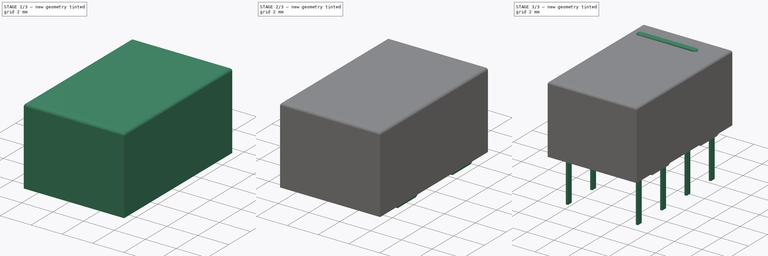
[diagram: build sequence overview — one tinted view per stage of 3, left to right]
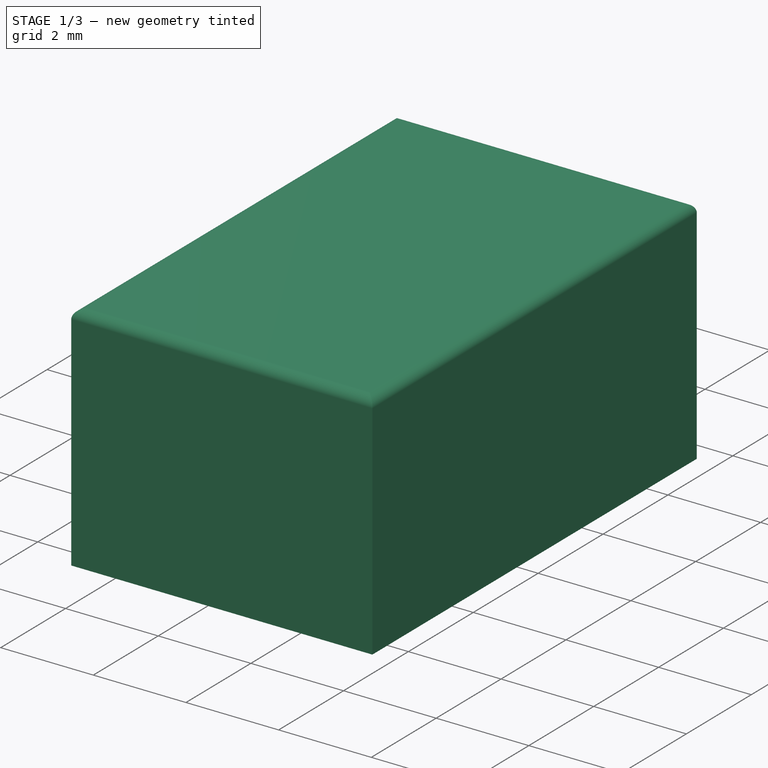
[diagram: stage 1 of 3 — iso view after this stage's code; geometry added in this stage tinted green]
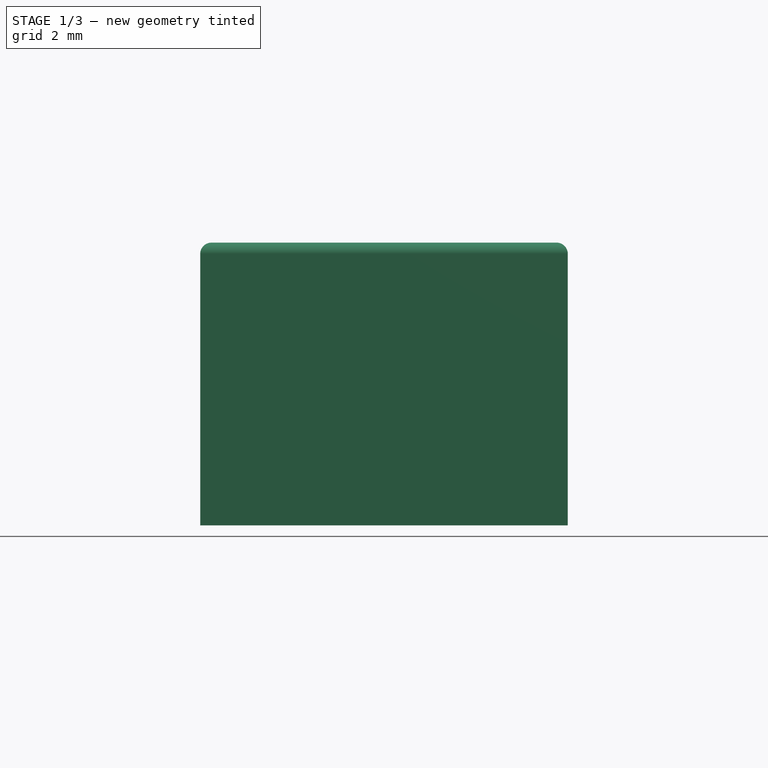
[diagram: stage 1 of 3 — front view after this stage's code; geometry added in this stage tinted green]
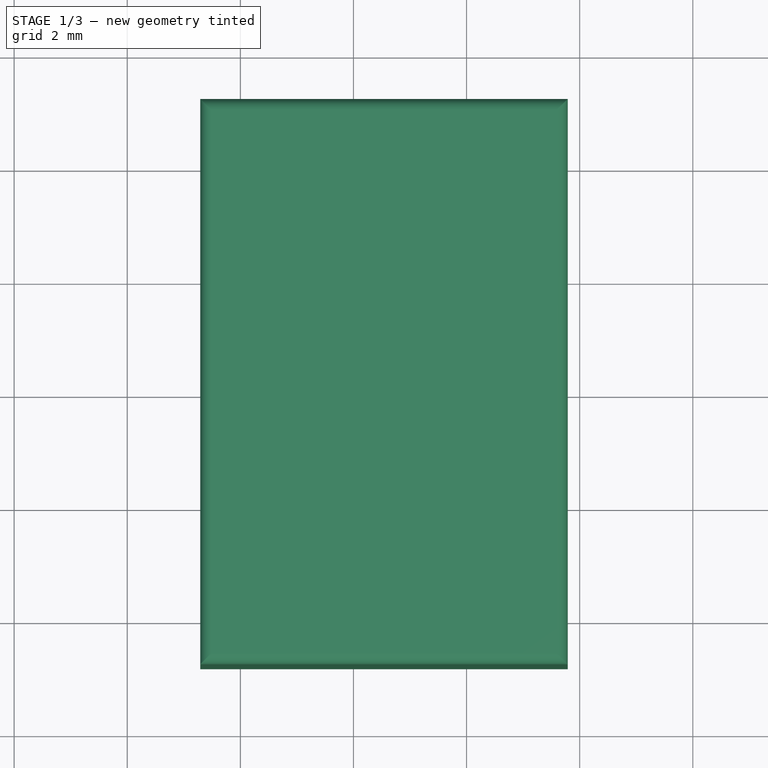
[diagram: stage 1 of 3 — top view after this stage's code; geometry added in this stage tinted green]
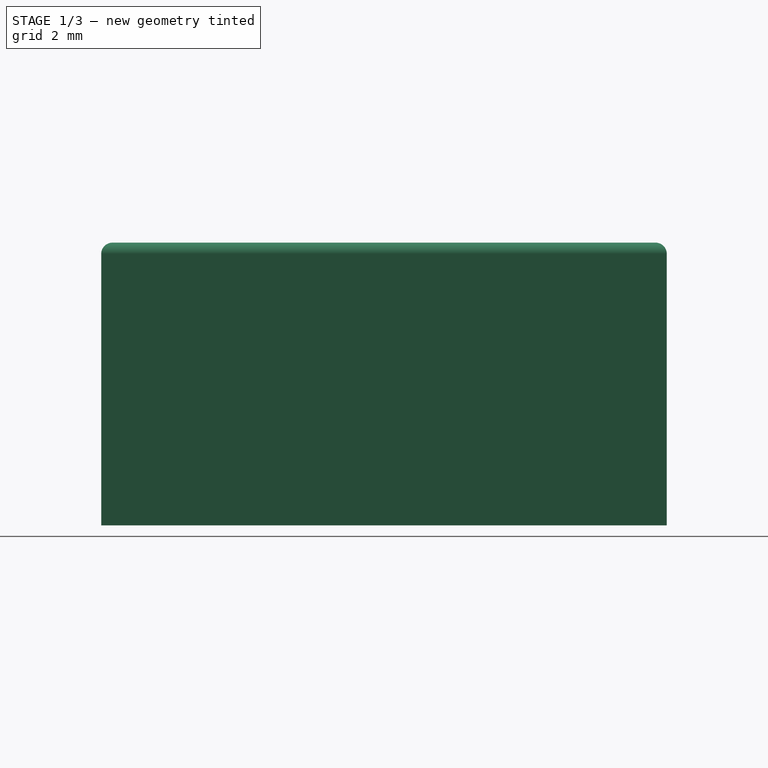
[diagram: stage 1 of 3 — right view after this stage's code; geometry added in this stage tinted green]
FCSTD DOCUMENT  (FreeCAD 0.16R6712 (Git))
Label: Relay_DPDT_Omron_G6K-2P
License: All rights reserved
LicenseURL: http://en.wikipedia.org/wiki/All_rights_reserved
objects: Sketcher::SketchObject×6, PartDesign::Pad×5, PartDesign::Pocket×1, PartDesign::Fillet×1, Part::MultiFuse×1
note: 20 computed .brp shape members not serialized (recipe doc carries the construction recipe); baked Part::Feature solids carry a one-line shape summary decoded from their .brp

FEATURE [Sketcher::SketchObject] Sketch
  Placement = pos=(0,0,0.1) rot=(0,0,-1;1.5708rad)
  sketch-geometry (4):
    g0: LineSegment StartX=-1.19 StartY=-0.71 StartZ=0 EndX=8.81 EndY=-0.71 EndZ=0
    g1: LineSegment StartX=8.81 StartY=-0.71 StartZ=0 EndX=8.81 EndY=5.79 EndZ=0
    g2: LineSegment StartX=8.81 StartY=5.79 StartZ=0 EndX=-1.19 EndY=5.79 EndZ=0
    g3: LineSegment StartX=-1.19 StartY=5.79 StartZ=0 EndX=-1.19 EndY=-0.71 EndZ=0
  constraints (12):
    c: Coincident(g0,g1)
    c: Coincident(g1,g2)
    c: Coincident(g2,g3)
    c: Coincident(g3,g0)
    c: Horizontal(g0)
    c: Horizontal(g2)
    c: Vertical(g1)
    c: Vertical(g3)
    c: DistanceX(g2,g2) = 10
    c: DistanceY(g1,g1) = 6.5
    c: DistanceX(g0,g-1) = 1.19
    c: DistanceY(g0,g-1) = 0.71
FEATURE [PartDesign::Pad] Pad
  Length = 5
  Length2 = 100
  Placement = pos=(0,0,0.1) rot=(0,0,-1;1.5708rad)
  Sketch = -> Sketch
  Type = 0
FEATURE [Sketcher::SketchObject] Sketch003
  Placement = pos=(0,0,5.1) rot=(0,0,-1;1.5708rad)
  Support = -> Pad [Face6]
  sketch-geometry (8):
    g0: ArcOfCircle CenterX=-0.300217 CenterY=8.35 CenterZ=0 NormalX=0 NormalY=0 NormalZ=1 Radius=0.750217 StartAngle=4.68833 EndAngle=6.28319
    g1: LineSegment StartX=0.45 StartY=8.35 StartZ=0 EndX=-2.05 EndY=8.35 EndZ=0
    g2: LineSegment StartX=-2.05 StartY=8.35 StartZ=0 EndX=-2.05 EndY=7.6 EndZ=0
    g3: LineSegment StartX=-2.05 StartY=7.6 StartZ=0 EndX=-0.318267 EndY=7.6 EndZ=0
    g4: LineSegment StartX=9.6 StartY=-0.75 StartZ=0 EndX=12.1 EndY=-0.75 EndZ=0
    g5: LineSegment StartX=12.1 StartY=-0.75 StartZ=0 EndX=12.1 EndY=0 EndZ=0
    g6: ArcOfCircle CenterX=10.353 CenterY=-0.75 CenterZ=0 NormalX=0 NormalY=0 NormalZ=1 Radius=0.753 StartAngle=1.6601 EndAngle=3.14159
    g7: LineSegment StartX=10.2858 StartY=0 StartZ=0 EndX=12.1 EndY=0 EndZ=0
  constraints (24):
    c: Coincident(g1,g0)
    c: Horizontal(g1)
    c: Coincident(g2,g1)
    c: Vertical(g2)
    c: Coincident(g3,g2)
    c: Coincident(g3,g0)
    c: Horizontal(g3)
    c: PointOnObject(g0,g1)
    c: DistanceX(g1,g1) = 2.5
    c: DistanceY(g2,g2) = 0.75
    c: DistanceX(g-1,g0) = 0.45
    c: DistanceY(g-1,g0) = 8.35
    c: Horizontal(g4)
    c: Coincident(g5,g4)
    c: PointOnObject(g6,g4)
    c: Coincident(g6,g4)
    c: Coincident(g6,g7)
    c: Horizontal(g7)
    c: Coincident(g5,g7)
    c: Vertical(g5)
    c: Equal(g5,g2)
    c: Equal(g4,g1)
    c: DistanceX(g-1,g4) = 9.6
    c: DistanceY(g4,g-1) = 0.75
FEATURE [PartDesign::Pocket] Pocket
  Length = 0.5
  Placement = pos=(0,0,0.1) rot=(0,0,-1;1.5708rad)
  Sketch = -> Sketch003
  Type = 0
FEATURE [PartDesign::Fillet] Fillet
  Base = -> Pocket [Edge4,Edge7,Edge10,Edge12]
  Placement = pos=(0,0,0.1) rot=(0,0,-1;1.5708rad)
  Radius = 0.2
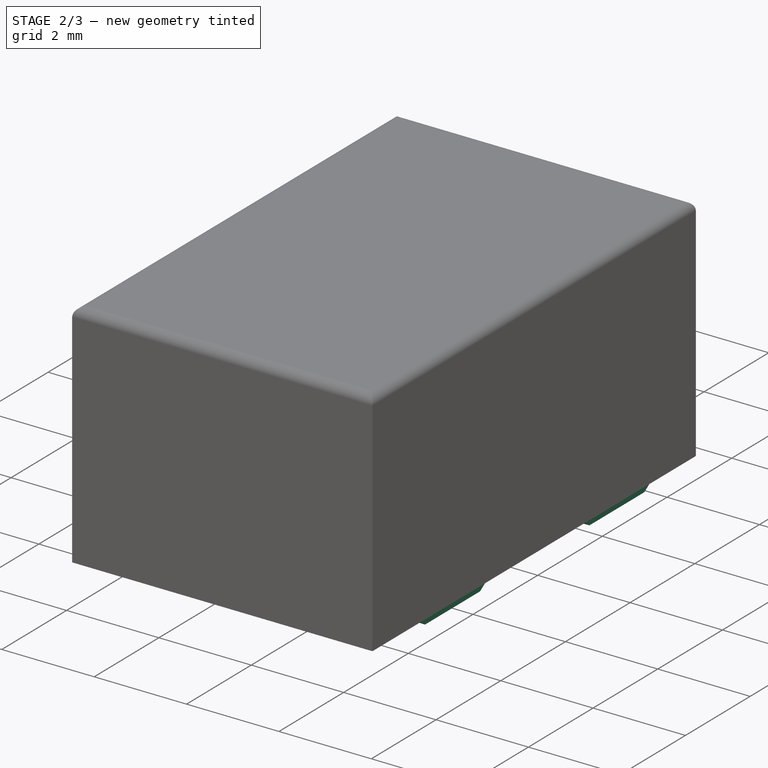
[diagram: stage 2 of 3 — iso view after this stage's code; geometry added in this stage tinted green]
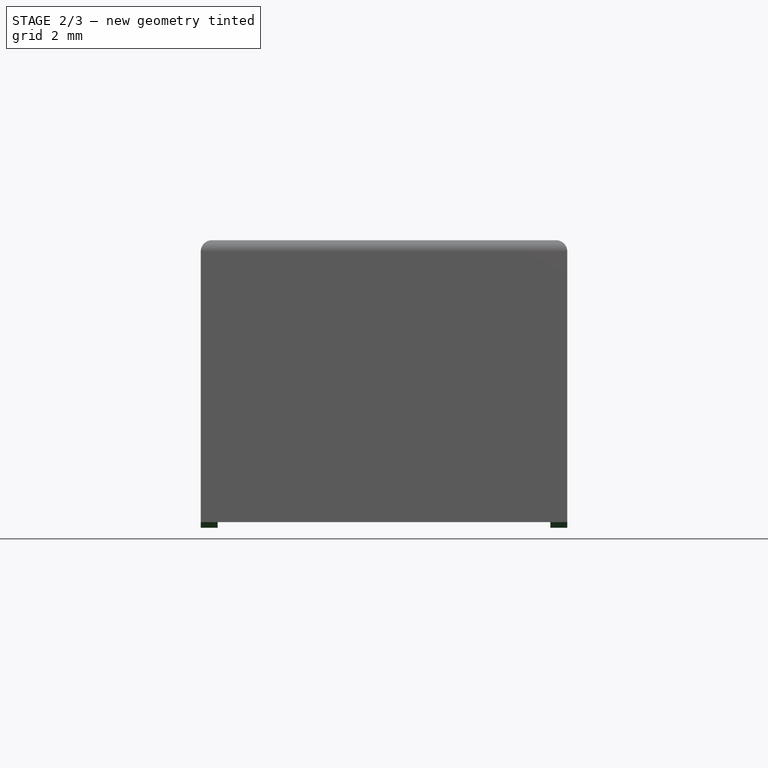
[diagram: stage 2 of 3 — front view after this stage's code; geometry added in this stage tinted green]
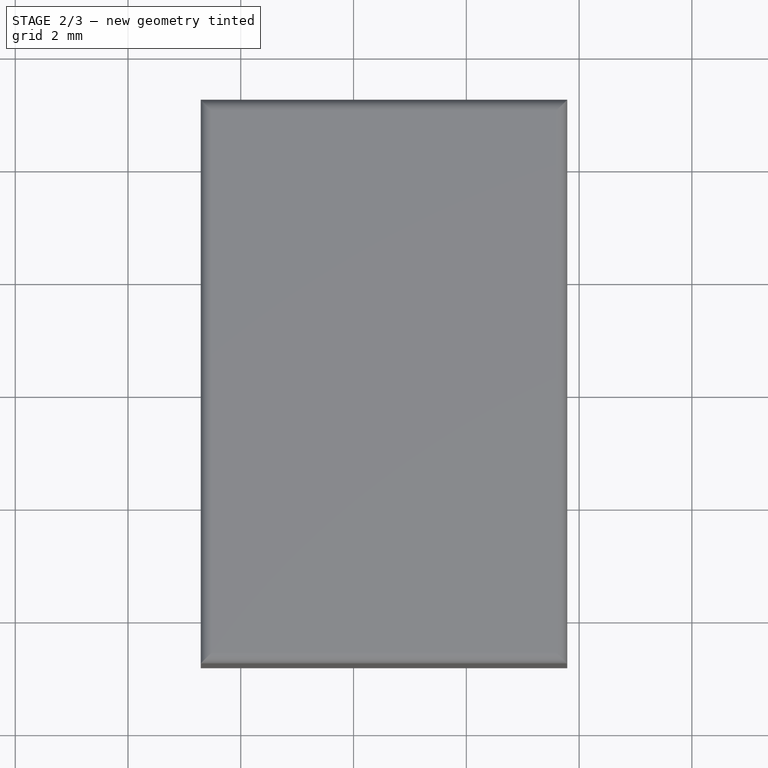
[diagram: stage 2 of 3 — top view after this stage's code; geometry added in this stage tinted green]
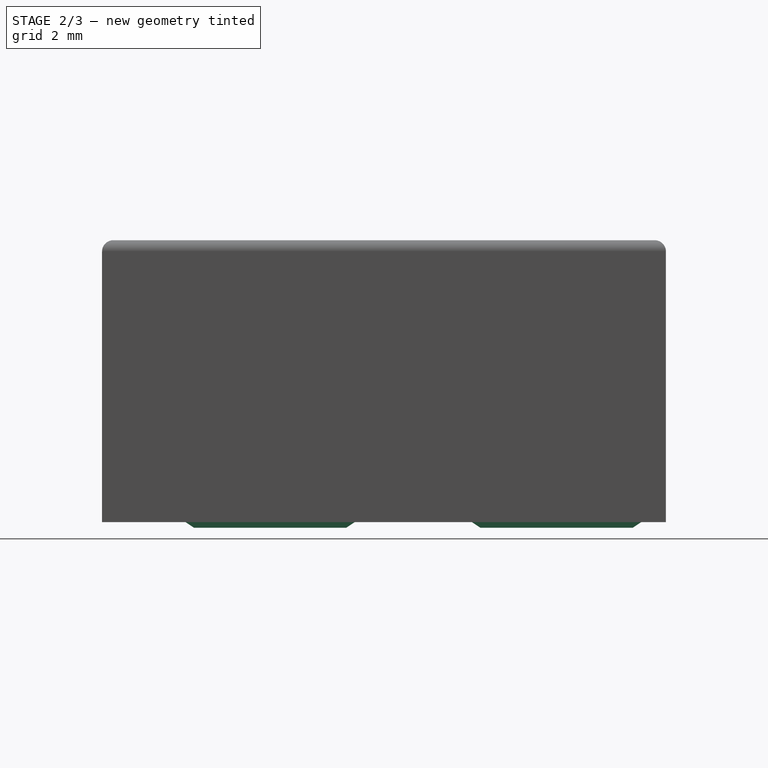
[diagram: stage 2 of 3 — right view after this stage's code; geometry added in this stage tinted green]
FEATURE [Sketcher::SketchObject] Sketch005
  Placement = pos=(-0.71,1,0) rot=(0.57735,0.57735,0.57735;2.0944rad)
  sketch-geometry (11):
    g0: LineSegment StartX=-7.33 StartY=0.1 StartZ=0 EndX=-7.18 EndY=0 EndZ=0
    g1: LineSegment StartX=-7.18 StartY=0 StartZ=0 EndX=-5.48 EndY=0 EndZ=0
    g2: LineSegment StartX=-5.48 StartY=0 StartZ=0 EndX=-5.33 EndY=0.1 EndZ=0
    g3: LineSegment StartX=-5.33 StartY=0.1 StartZ=0 EndX=-7.33 EndY=0.1 EndZ=0
    g4: LineSegment StartX=-2.25 StartY=0.1 StartZ=0 EndX=-2.1 EndY=0 EndZ=0
    g5: LineSegment StartX=-2.1 StartY=0 StartZ=0 EndX=-0.4 EndY=0 EndZ=0
    g6: LineSegment StartX=-0.4 StartY=0 StartZ=0 EndX=-0.25 EndY=0.1 EndZ=0
    g7: LineSegment StartX=-0.25 StartY=0.1 StartZ=0 EndX=-2.25 EndY=0.1 EndZ=0
    g8: LineSegment [constr] StartX=-6.33 StartY=0.1 StartZ=0 EndX=-6.33 EndY=0 EndZ=0
    g9: LineSegment [constr] StartX=-1.25 StartY=0.1 StartZ=0 EndX=-1.25 EndY=0 EndZ=0
    g10: LineSegment [constr] StartX=-5.33 StartY=0.1 StartZ=0 EndX=0 EndY=0.1 EndZ=0
  constraints (34):
    c: Coincident(g1,g0)
    c: Horizontal(g1)
    c: Coincident(g2,g1)
    c: Coincident(g3,g2)
    c: Horizontal(g3)
    c: Coincident(g0,g3)
    c: Coincident(g5,g4)
    c: Horizontal(g5)
    c: Coincident(g6,g5)
    c: Coincident(g7,g6)
    c: Horizontal(g7)
    c: Coincident(g4,g7)
    c: Equal(g5,g1)
    c: Equal(g3,g7)
    c: DistanceX(g3,g3) = 2
    c: DistanceX(g1,g1) = 1.7
    c: PointOnObject(g8,g3)
    c: PointOnObject(g8,g1)
    c: Vertical(g8)
    c: PointOnObject(g9,g5)
    c: Symmetric(g5,g5,g9)
    c: Symmetric(g7,g7,g9)
    c: Vertical(g9)
    c: Symmetric(g3,g3,g8)
    c: Symmetric(g1,g1,g8)
    c: DistanceX(g2,g6) = 5.08
    c: DistanceX(g6,g-1) = 0.25
    c: DistanceY(g4,g4) = 0.1
    c: Equal(g8,g9)
    c: Coincident(g10,g2)
    c: PointOnObject(g10,g-2)
    c: Horizontal(g10)
    c: PointOnObject(g6,g10)
    c: DistanceY(g-1,g6) = 0.1
FEATURE [Sketcher::SketchObject] Sketch006
  Placement = pos=(5.79,0,0) rot=(0.57735,0.57735,0.57735;2.0944rad)
  sketch-geometry (11):
    g0: LineSegment StartX=-7.33 StartY=0.1 StartZ=0 EndX=-7.18 EndY=0 EndZ=0
    g1: LineSegment StartX=-7.18 StartY=0 StartZ=0 EndX=-5.48 EndY=0 EndZ=0
    g2: LineSegment StartX=-5.48 StartY=0 StartZ=0 EndX=-5.33 EndY=0.1 EndZ=0
    g3: LineSegment StartX=-5.33 StartY=0.1 StartZ=0 EndX=-7.33 EndY=0.1 EndZ=0
    g4: LineSegment StartX=-2.25 StartY=0.1 StartZ=0 EndX=-2.1 EndY=0 EndZ=0
    g5: LineSegment StartX=-2.1 StartY=0 StartZ=0 EndX=-0.4 EndY=0 EndZ=0
    g6: LineSegment StartX=-0.4 StartY=0 StartZ=0 EndX=-0.25 EndY=0.1 EndZ=0
    g7: LineSegment StartX=-0.25 StartY=0.1 StartZ=0 EndX=-2.25 EndY=0.1 EndZ=0
    g8: LineSegment [constr] StartX=-6.33 StartY=0.1 StartZ=0 EndX=-6.33 EndY=0 EndZ=0
    g9: LineSegment [constr] StartX=-1.25 StartY=0.1 StartZ=0 EndX=-1.25 EndY=0 EndZ=0
    g10: LineSegment [constr] StartX=-5.33 StartY=0.1 StartZ=0 EndX=0 EndY=0.1 EndZ=0
  constraints (34):
    c: Coincident(g1,g0)
    c: Horizontal(g1)
    c: Coincident(g2,g1)
    c: Coincident(g3,g2)
    c: Horizontal(g3)
    c: Coincident(g0,g3)
    c: Coincident(g5,g4)
    c: Horizontal(g5)
    c: Coincident(g6,g5)
    c: Coincident(g7,g6)
    c: Horizontal(g7)
    c: Coincident(g4,g7)
    c: Equal(g5,g1)
    c: Equal(g3,g7)
    c: DistanceX(g3,g3) = 2
    c: DistanceX(g1,g1) = 1.7
    c: PointOnObject(g8,g3)
    c: PointOnObject(g8,g1)
    c: Vertical(g8)
    c: PointOnObject(g9,g5)
    c: Symmetric(g5,g5,g9)
    c: Symmetric(g7,g7,g9)
    c: Vertical(g9)
    c: Symmetric(g3,g3,g8)
    c: Symmetric(g1,g1,g8)
    c: DistanceX(g2,g6) = 5.08
    c: DistanceX(g6,g-1) = 0.25
    c: DistanceY(g4,g4) = 0.1
    c: Equal(g8,g9)
    c: Coincident(g10,g2)
    c: PointOnObject(g10,g-2)
    c: Horizontal(g10)
    c: PointOnObject(g6,g10)
    c: DistanceY(g-1,g6) = 0.1
FEATURE [PartDesign::Pad] Pad003
  Length = 0.3
  Length2 = 100
  Placement = pos=(-0.71,1,0) rot=(0.57735,0.57735,0.57735;2.0944rad)
  Sketch = -> Sketch005
  Type = 0
FEATURE [PartDesign::Pad] Pad004
  Length = 0.3
  Length2 = 100
  Placement = pos=(5.79,0,0) rot=(0.57735,0.57735,0.57735;2.0944rad)
  Reversed = true
  Sketch = -> Sketch006
  Type = 0
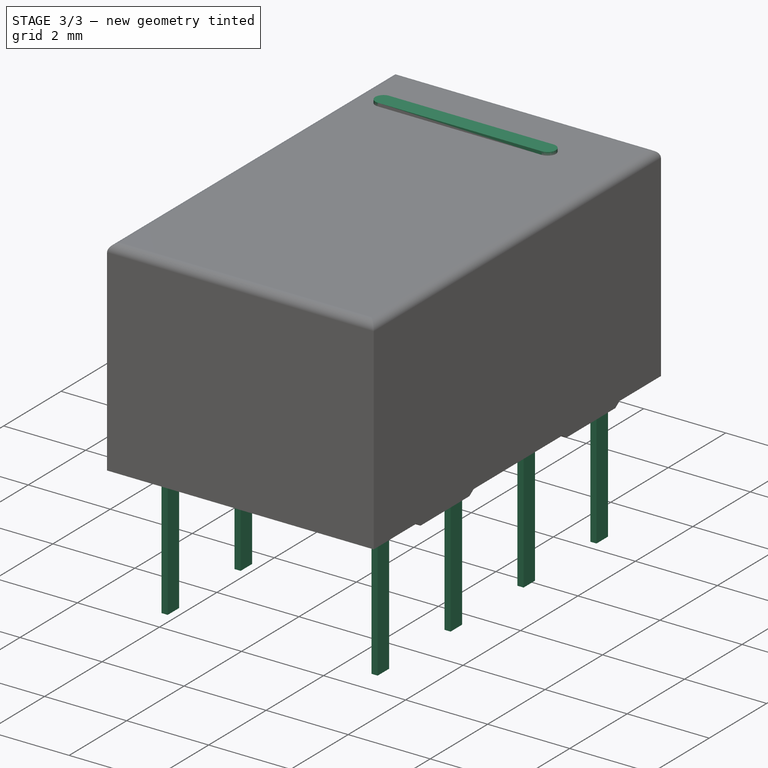
[diagram: stage 3 of 3 — iso view after this stage's code; geometry added in this stage tinted green]
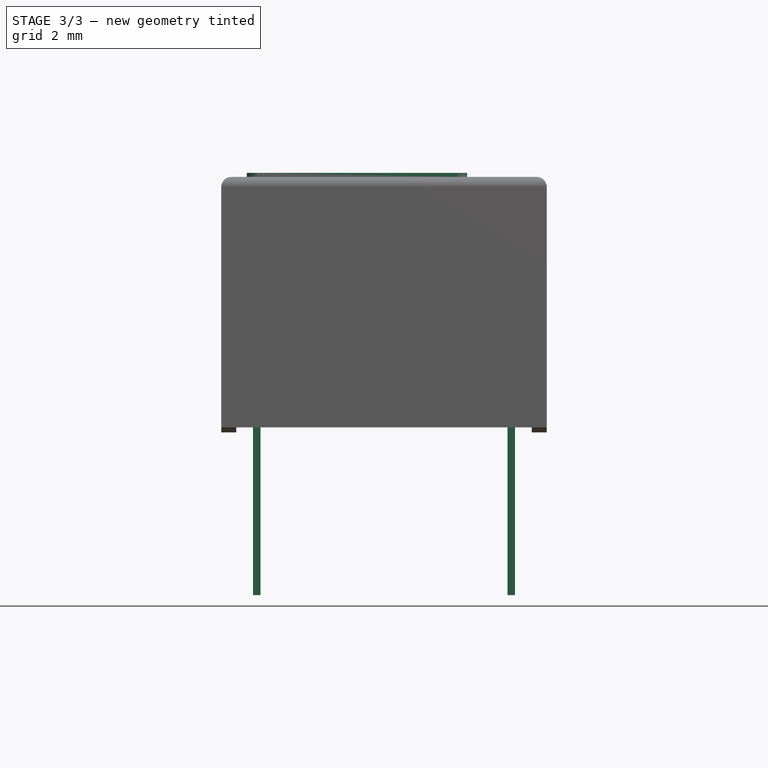
[diagram: stage 3 of 3 — front view after this stage's code; geometry added in this stage tinted green]
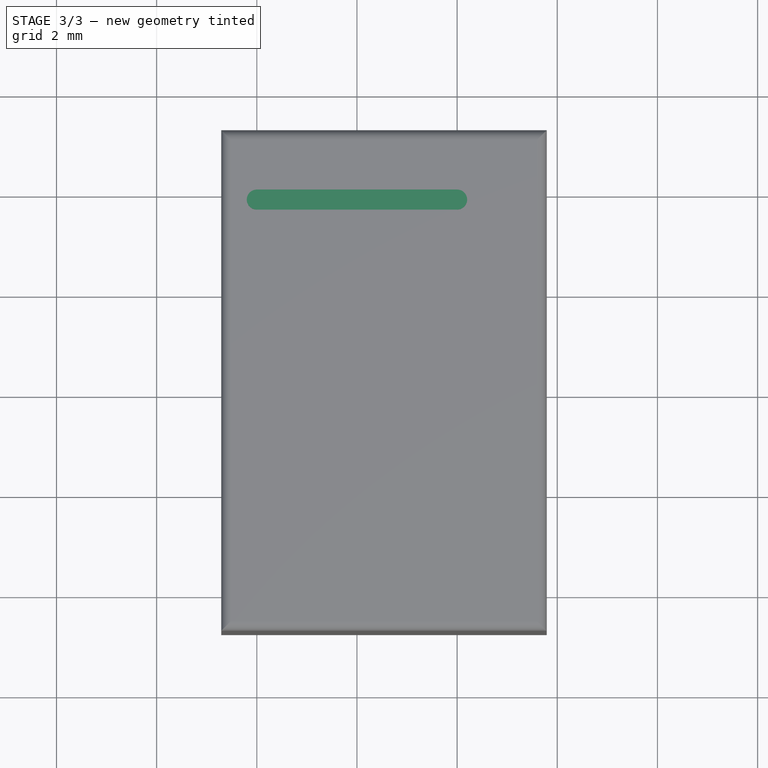
[diagram: stage 3 of 3 — top view after this stage's code; geometry added in this stage tinted green]
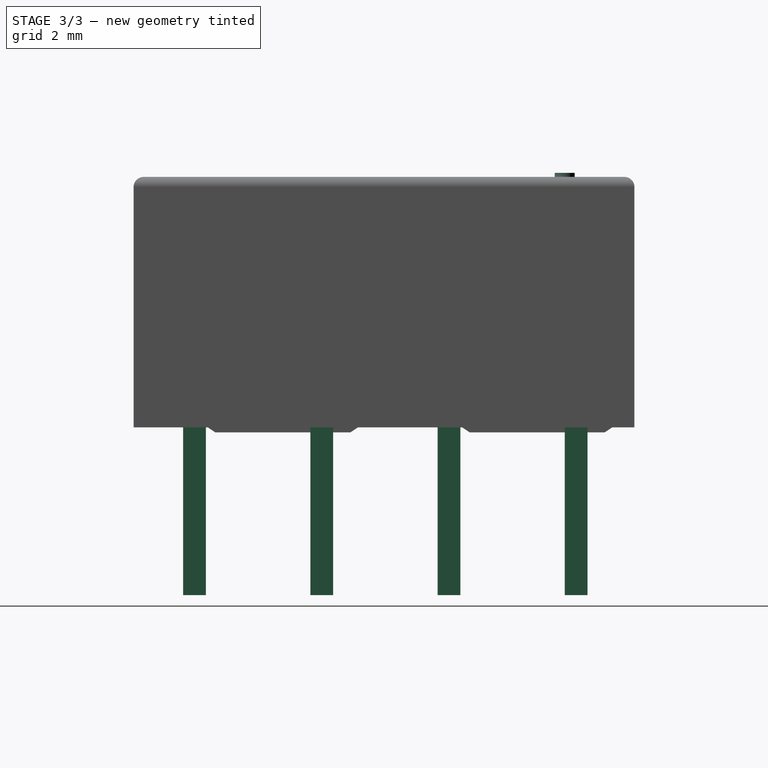
[diagram: stage 3 of 3 — right view after this stage's code; geometry added in this stage tinted green]
FEATURE [Sketcher::SketchObject] Sketch001
  Placement = pos=(0,0,5) rot=(0,0,-1;1.5708rad)
  sketch-geometry (6):
    g0: LineSegment [constr] StartX=0 StartY=0 StartZ=0 EndX=0.4 EndY=0 EndZ=0
    g1: LineSegment StartX=0.4 StartY=0 StartZ=0 EndX=0.4 EndY=4 EndZ=0
    g2: LineSegment [constr] StartX=0.4 StartY=4 StartZ=0 EndX=0 EndY=4 EndZ=0
    g3: LineSegment StartX=0 StartY=4 StartZ=0 EndX=0 EndY=0 EndZ=0
    g4: ArcOfCircle CenterX=0.2 CenterY=4 CenterZ=0 NormalX=0 NormalY=0 NormalZ=1 Radius=0.2 StartAngle=0 EndAngle=3.14159
    g5: ArcOfCircle CenterX=0.2 CenterY=0 CenterZ=0 NormalX=0 NormalY=0 NormalZ=1 Radius=0.2 StartAngle=3.14159 EndAngle=6.28319
  constraints (17):
    c: Coincident(g0,g1)
    c: Coincident(g1,g2)
    c: Coincident(g2,g3)
    c: Coincident(g3,g0)
    c: Horizontal(g0)
    c: Horizontal(g2)
    c: Vertical(g1)
    c: Vertical(g3)
    c: Coincident(g0,g-1)
    c: DistanceY(g1,g1) = 4
    c: DistanceX(g2,g2) = 0.4
    c: PointOnObject(g4,g2)
    c: Coincident(g4,g2)
    c: Coincident(g4,g1)
    c: PointOnObject(g5,g0)
    c: Coincident(g5,g0)
    c: Coincident(g5,g-1)
FEATURE [PartDesign::Pad] Pad001
  Length = 0.18
  Length2 = 100
  Placement = pos=(0,0,5) rot=(0,0,-1;1.5708rad)
  Sketch = -> Sketch001
  Type = 0
FEATURE [Sketcher::SketchObject] Sketch002
  Placement = pos=(0,0,0.25) rot=(0,0,-1;1.5708rad)
  expr: Constraints[10] = 0.15 / 2
  sketch-geometry (36):
    g0: LineSegment StartX=-0.2 StartY=0.075 StartZ=0 EndX=0.2 EndY=0.075 EndZ=0
    g1: LineSegment StartX=0.2 StartY=0.075 StartZ=0 EndX=0.2 EndY=-0.075 EndZ=0
    g2: LineSegment StartX=0.2 StartY=-0.075 StartZ=0 EndX=-0.2 EndY=-0.075 EndZ=0
    g3: LineSegment StartX=-0.2 StartY=-0.075 StartZ=0 EndX=-0.2 EndY=0.075 EndZ=0
    g4: GeomPoint [constr] X=2.54 Y=0 Z=0
    g5: GeomPoint [constr] X=5.08 Y=0 Z=0
    g6: GeomPoint [constr] X=7.62 Y=0 Z=0
    g7: LineSegment StartX=2.34 StartY=-0.075 StartZ=0 EndX=2.74 EndY=-0.075 EndZ=0
    g8: LineSegment StartX=2.74 StartY=-0.075 StartZ=0 EndX=2.74 EndY=0.075 EndZ=0
    g9: LineSegment StartX=2.74 StartY=0.075 StartZ=0 EndX=2.34 EndY=0.075 EndZ=0
    g10: LineSegment StartX=2.34 StartY=0.075 StartZ=0 EndX=2.34 EndY=-0.075 EndZ=0
    g11: LineSegment StartX=4.88 StartY=-0.075 StartZ=0 EndX=5.28 EndY=-0.075 EndZ=0
    g12: LineSegment StartX=5.28 StartY=-0.075 StartZ=0 EndX=5.28 EndY=0.075 EndZ=0
    g13: LineSegment StartX=5.28 StartY=0.075 StartZ=0 EndX=4.88 EndY=0.075 EndZ=0
    g14: LineSegment StartX=4.88 StartY=0.075 StartZ=0 EndX=4.88 EndY=-0.075 EndZ=0
    g15: GeomPoint [constr] X=7.0377 Y=-0.001997 Z=0
    g16: LineSegment StartX=7.42 StartY=-0.075 StartZ=0 EndX=7.82 EndY=-0.075 EndZ=0
    g17: LineSegment StartX=7.82 StartY=-0.075 StartZ=0 EndX=7.82 EndY=0.075 EndZ=0
    g18: LineSegment StartX=7.82 StartY=0.075 StartZ=0 EndX=7.42 EndY=0.075 EndZ=0
    g19: LineSegment StartX=7.42 StartY=0.075 StartZ=0 EndX=7.42 EndY=-0.075 EndZ=0
    g20: LineSegment StartX=-0.254201 StartY=5.155 StartZ=0 EndX=0.145799 EndY=5.155 EndZ=0
    g21: LineSegment StartX=0.145799 StartY=5.155 StartZ=0 EndX=0.145799 EndY=5.005 EndZ=0
    g22: LineSegment StartX=0.145799 StartY=5.005 StartZ=0 EndX=-0.254201 EndY=5.005 EndZ=0
    g23: LineSegment StartX=-0.254201 StartY=5.005 StartZ=0 EndX=-0.254201 EndY=5.155 EndZ=0
    g24: LineSegment StartX=2.2858 StartY=5.005 StartZ=0 EndX=2.6858 EndY=5.005 EndZ=0
    g25: LineSegment StartX=2.6858 StartY=5.005 StartZ=0 EndX=2.6858 EndY=5.155 EndZ=0
    g26: LineSegment StartX=2.6858 StartY=5.155 StartZ=0 EndX=2.2858 EndY=5.155 EndZ=0
    g27: LineSegment StartX=2.2858 StartY=5.155 StartZ=0 EndX=2.2858 EndY=5.005 EndZ=0
    g28: LineSegment StartX=4.8258 StartY=5.005 StartZ=0 EndX=5.2258 EndY=5.005 EndZ=0
    g29: LineSegment StartX=5.2258 StartY=5.005 StartZ=0 EndX=5.2258 EndY=5.155 EndZ=0
    g30: LineSegment StartX=5.2258 StartY=5.155 StartZ=0 EndX=4.8258 EndY=5.155 EndZ=0
    g31: LineSegment StartX=4.8258 StartY=5.155 StartZ=0 EndX=4.8258 EndY=5.005 EndZ=0
    g32: LineSegment StartX=7.3658 StartY=5.005 StartZ=0 EndX=7.7658 EndY=5.005 EndZ=0
    g33: LineSegment StartX=7.7658 StartY=5.005 StartZ=0 EndX=7.7658 EndY=5.155 EndZ=0
    g34: LineSegment StartX=7.7658 StartY=5.155 StartZ=0 EndX=7.3658 EndY=5.155 EndZ=0
    g35: LineSegment StartX=7.3658 StartY=5.155 StartZ=0 EndX=7.3658 EndY=5.005 EndZ=0
  constraints (101):
    c: Coincident(g0,g1)
    c: Coincident(g1,g2)
    c: Coincident(g2,g3)
    c: Coincident(g3,g0)
    c: Horizontal(g0)
    c: Horizontal(g2)
    c: Vertical(g1)
    c: Vertical(g3)
    c: DistanceX(g0,g0) = 0.4
    c: DistanceY(g1,g1) = 0.15
    c: DistanceY(g-1,g0) = 0.075
    c: DistanceX(g0,g-1) = 0.2
    c: PointOnObject(g4,g-1)
    c: PointOnObject(g5,g-1)
    c: PointOnObject(g6,g-1)
    c: DistanceX(g5,g6) = 2.54
    c: DistanceX(g-1,g4) = 2.54
    c: DistanceX(g4,g5) = 2.54
    c: Coincident(g7,g8)
    c: Coincident(g8,g9)
    c: Coincident(g9,g10)
    c: Coincident(g10,g7)
    c: Horizontal(g7)
    c: Horizontal(g9)
    c: Vertical(g8)
    c: Vertical(g10)
    c: Equal(g0,g7) = 0.5
    c: Equal(g1,g8) = 0.25
    c: DistanceX(g2,g9) = 2.54
    c: Coincident(g11,g12)
    c: Coincident(g12,g13)
    c: Coincident(g13,g14)
    c: Coincident(g14,g11)
    c: Horizontal(g11)
    c: Horizontal(g13)
    c: Vertical(g12)
    c: Vertical(g14)
    c: Equal(g0,g11) = 0.5
    c: Equal(g1,g12) = 0.25
    c: Coincident(g16,g17)
    c: Coincident(g17,g18)
    c: Coincident(g18,g19)
    c: Coincident(g19,g16)
    c: Horizontal(g16)
    c: Horizontal(g18)
    c: Vertical(g17)
    c: Vertical(g19)
    c: Equal(g11,g16) = 0.5
    c: Equal(g12,g17) = 0.25
    c: DistanceX(g13,g18) = 2.54
    c: DistanceX(g9,g13) = 2.54
    c: DistanceY(g11,g16) = 0
    c: DistanceY(g11,g7) = 0
    c: DistanceY(g7,g0) = 0.15
    c: Coincident(g20,g21)
    c: Coincident(g21,g22)
    c: Coincident(g22,g23)
    c: Coincident(g23,g20)
    c: Horizontal(g20)
    c: Horizontal(g22)
    c: Vertical(g21)
    c: Vertical(g23)
    c: Equal(g0,g20) = 0.5
    c: Equal(g1,g21) = 0.25
    c: Coincident(g24,g25)
    c: Coincident(g25,g26)
    c: Coincident(g26,g27)
    c: Coincident(g27,g24)
    c: Horizontal(g24)
    c: Horizontal(g26)
    c: Vertical(g25)
    c: Vertical(g27)
    c: Equal(g20,g24) = 0.5
    c: Equal(g21,g25) = 0.25
    c: DistanceX(g22,g26) = 2.54
    c: Coincident(g28,g29)
    c: Coincident(g29,g30)
    c: Coincident(g30,g31)
    c: Coincident(g31,g28)
    c: Horizontal(g28)
    c: Horizontal(g30)
    c: Vertical(g29)
    c: Vertical(g31)
    c: Equal(g20,g28) = 0.5
    c: Equal(g21,g29) = 0.25
    c: Coincident(g32,g33)
    c: Coincident(g33,g34)
    c: Coincident(g34,g35)
    c: Coincident(g35,g32)
    c: Horizontal(g32)
    c: Horizontal(g34)
    c: Vertical(g33)
    c: Vertical(g35)
    c: Equal(g28,g32) = 0.5
    c: Equal(g29,g33) = 0.25
    c: DistanceX(g30,g34) = 2.54
    c: DistanceX(g26,g30) = 2.54
    c: DistanceY(g28,g32) = 0
    c: DistanceY(g28,g24) = 0
    c: DistanceY(g24,g20) = 0.15
    c: DistanceY(g2,g22) = 5.08
FEATURE [PartDesign::Pad] Pad002
  Length = 3.5
  Length2 = 100
  Placement = pos=(0,0,0.25) rot=(0,0,-1;1.5708rad)
  Reversed = true
  Sketch = -> Sketch002
  Type = 0
FEATURE [Part::MultiFuse] Fillet_mp_cp  label="Relay_DPDT_Omron_G6K-2P"
  Shapes = -> [Fillet,Pad004,Pad002,Pad001,Pad003]
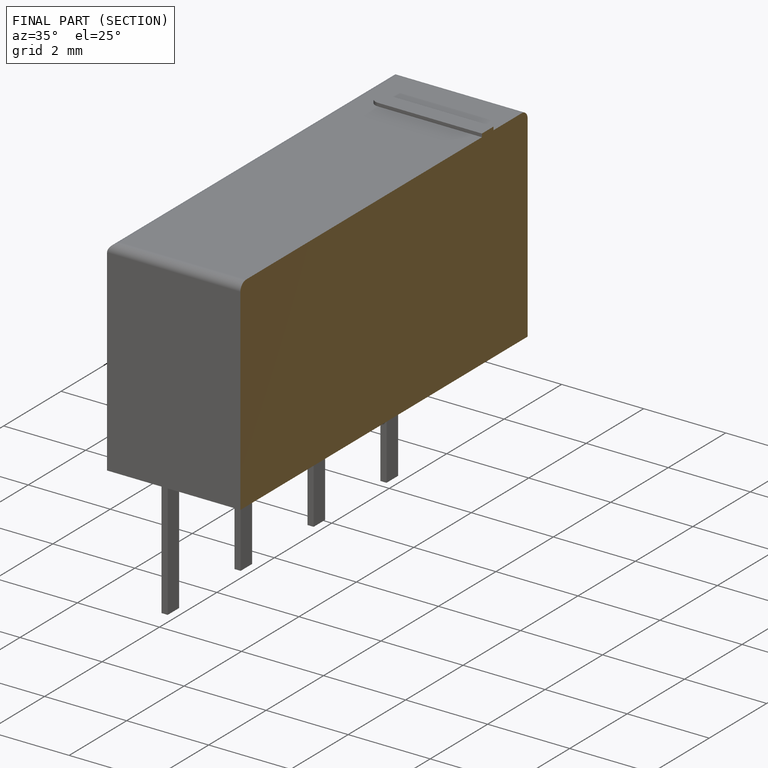
[diagram: finished part — half-section view (interior)]
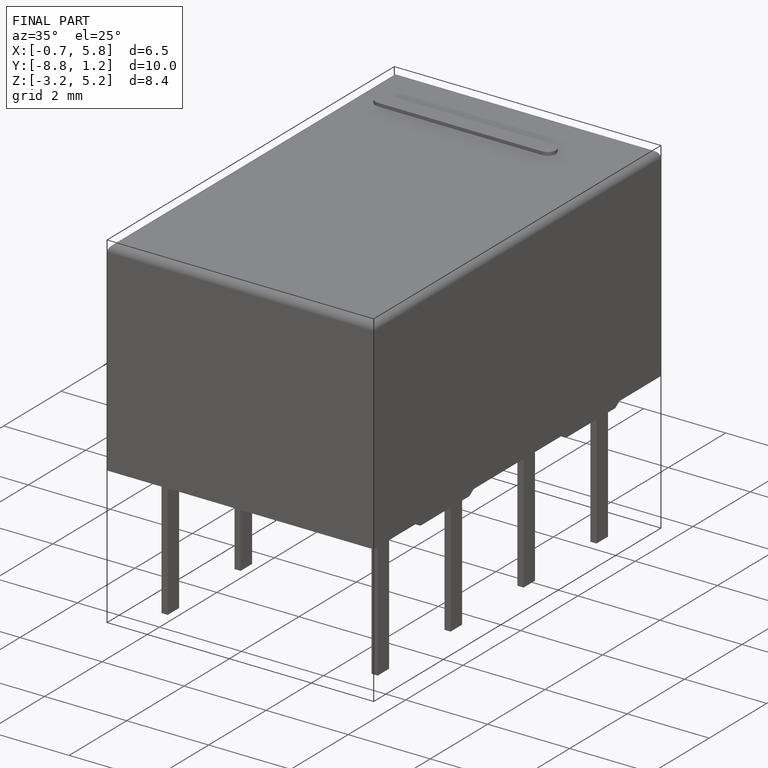
[diagram: finished part — iso view with bounding-box wireframe]
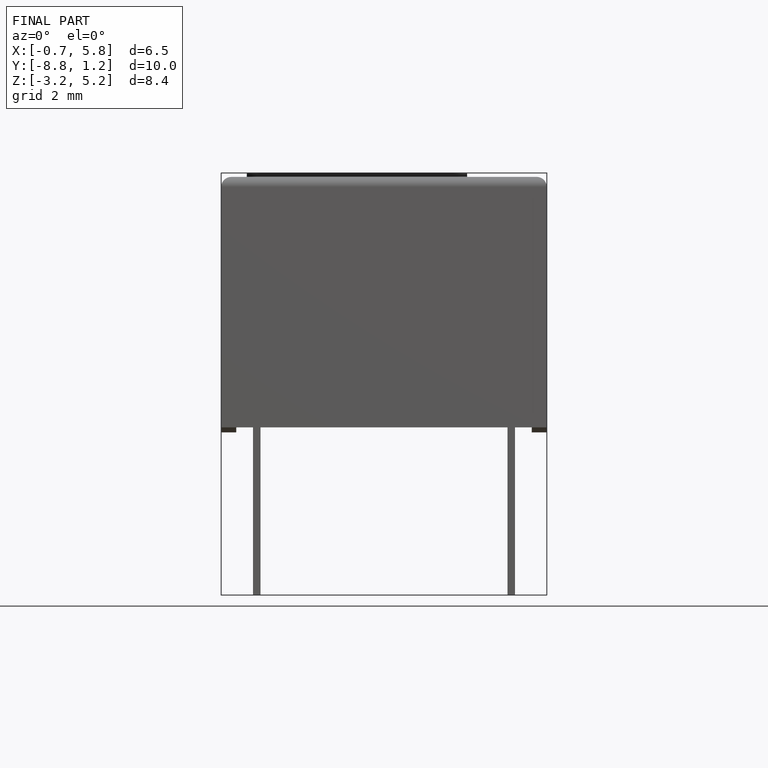
[diagram: finished part — front view with bounding-box wireframe]
